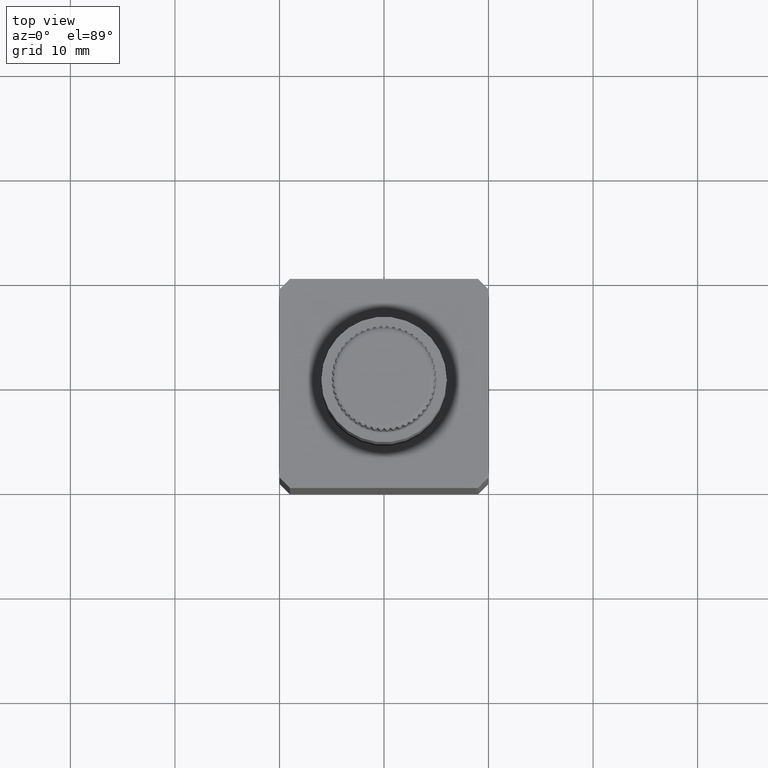
[diagram: clean part render]
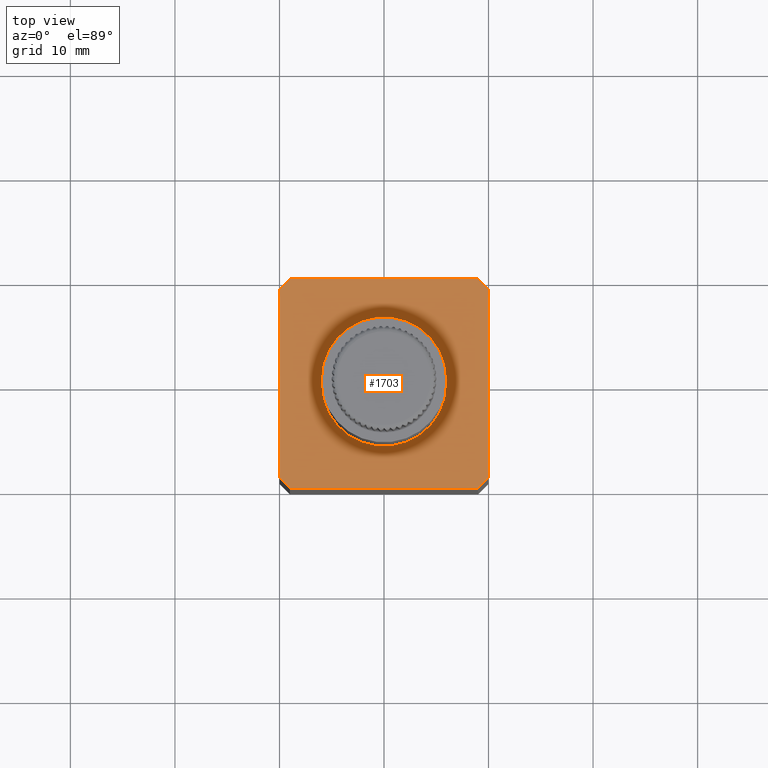
[diagram: same view with one face highlighted and labeled with its STEP entity id]
A machine part, top view. The second image highlights one B-rep face of the part: STEP entity #1703.
In plain terms, the highlighted planar face has unit normal (0, 0, -1).
Its self-contained STEP definition (entity closure, byte-faithful):
#336 = CARTESIAN_POINT ( 'NONE',  ( 9.000000000000010700, -10.00000000000000400, 35.00000000000000000 ) ) ;
#340 = VECTOR ( 'NONE', #1861, 1000.000000000000000 ) ;
#377 = EDGE_CURVE ( 'NONE', #827, #5912, #4413, .T. ) ;
#529 = VERTEX_POINT ( 'NONE', #7027 ) ;
#552 = VECTOR ( 'NONE', #6084, 1000.000000000000000 ) ;
#734 = VERTEX_POINT ( 'NONE', #5701 ) ;
#827 = VERTEX_POINT ( 'NONE', #7378 ) ;
#828 = DIRECTION ( 'NONE',  ( 0.0000000000000000000, 0.0000000000000000000, -1.000000000000000000 ) ) ;
#1052 = CARTESIAN_POINT ( 'NONE',  ( 6.000000000000000900, 7.347880794884120700E-016, 35.00000000000000000 ) ) ;
#1082 = ORIENTED_EDGE ( 'NONE', *, *, #3125, .T. ) ;
#1090 = CIRCLE ( 'NONE', #2014, 6.000000000000000900 ) ;
#1332 = VERTEX_POINT ( 'NONE', #336 ) ;
#1546 = FACE_OUTER_BOUND ( 'NONE', #9881, .T. ) ;
#1683 = CARTESIAN_POINT ( 'NONE',  ( 10.00000000000001200, 10.00000000000000400, 35.00000000000000000 ) ) ;
#1703 = ADVANCED_FACE ( 'NONE', ( #1546, #4131 ), #9462, .F. ) ;
#1741 = CARTESIAN_POINT ( 'NONE',  ( -10.00000000000000900, 9.000000000000001800, 35.00000000000000000 ) ) ;
#1748 = VERTEX_POINT ( 'NONE', #1052 ) ;
#1861 = DIRECTION ( 'NONE',  ( 0.7071067811865463500, -0.7071067811865487900, 0.0000000000000000000 ) ) ;
#1901 = LINE ( 'NONE', #1741, #7258 ) ;
#1973 = VERTEX_POINT ( 'NONE', #7757 ) ;
#2014 = AXIS2_PLACEMENT_3D ( 'NONE', #4680, #3779, #5513 ) ;
#2029 = VECTOR ( 'NONE', #8826, 1000.000000000000000 ) ;
#2054 = DIRECTION ( 'NONE',  ( 9.637352644315595200E-017, -1.000000000000000000, 0.0000000000000000000 ) ) ;
#2133 = LINE ( 'NONE', #2471, #8301 ) ;
#2310 = DIRECTION ( 'NONE',  ( -1.927470528863119800E-016, 1.000000000000000000, -0.0000000000000000000 ) ) ;
#2427 = LINE ( 'NONE', #4259, #340 ) ;
#2471 = CARTESIAN_POINT ( 'NONE',  ( -10.00000000000000900, 9.000000000000001800, 35.00000000000000000 ) ) ;
#2769 = LINE ( 'NONE', #4548, #552 ) ;
#2790 = CARTESIAN_POINT ( 'NONE',  ( -9.000000000000005300, -10.00000000000000400, 35.00000000000000000 ) ) ;
#2887 = VERTEX_POINT ( 'NONE', #7302 ) ;
#2983 = ORIENTED_EDGE ( 'NONE', *, *, #7118, .F. ) ;
#3125 = EDGE_CURVE ( 'NONE', #5912, #9207, #10475, .T. ) ;
#3177 = LINE ( 'NONE', #8197, #9132 ) ;
#3221 = DIRECTION ( 'NONE',  ( -0.7071067811865489100, -0.7071067811865462400, -0.0000000000000000000 ) ) ;
#3265 = ORIENTED_EDGE ( 'NONE', *, *, #3352, .T. ) ;
#3352 = EDGE_CURVE ( 'NONE', #1973, #529, #2427, .T. ) ;
#3621 = VECTOR ( 'NONE', #2310, 1000.000000000000000 ) ;
#3655 = AXIS2_PLACEMENT_3D ( 'NONE', #8152, #9850, #10714 ) ;
#3779 = DIRECTION ( 'NONE',  ( -0.0000000000000000000, -0.0000000000000000000, 1.000000000000000000 ) ) ;
#3988 = CIRCLE ( 'NONE', #3655, 6.000000000000000900 ) ;
#4089 = VERTEX_POINT ( 'NONE', #10858 ) ;
#4118 = EDGE_CURVE ( 'NONE', #2887, #1748, #3988, .T. ) ;
#4131 = FACE_BOUND ( 'NONE', #9471, .T. ) ;
#4259 = CARTESIAN_POINT ( 'NONE',  ( -10.00000000000000700, -8.999999999999998200, 35.00000000000000000 ) ) ;
#4413 = LINE ( 'NONE', #5634, #3621 ) ;
#4548 = CARTESIAN_POINT ( 'NONE',  ( -9.000000000000007100, 9.999999999999998200, 35.00000000000000000 ) ) ;
#4680 = CARTESIAN_POINT ( 'NONE',  ( 0.0000000000000000000, 0.0000000000000000000, 35.00000000000000000 ) ) ;
#4753 = LINE ( 'NONE', #2790, #2029 ) ;
#4868 = ORIENTED_EDGE ( 'NONE', *, *, #5215, .T. ) ;
#4872 = ORIENTED_EDGE ( 'NONE', *, *, #377, .T. ) ;
#5035 = EDGE_CURVE ( 'NONE', #529, #1332, #4753, .T. ) ;
#5215 = EDGE_CURVE ( 'NONE', #1332, #827, #3177, .T. ) ;
#5385 = EDGE_CURVE ( 'NONE', #4089, #1973, #1901, .T. ) ;
#5513 = DIRECTION ( 'NONE',  ( -1.000000000000000000, 0.0000000000000000000, 0.0000000000000000000 ) ) ;
#5634 = CARTESIAN_POINT ( 'NONE',  ( 10.00000000000001200, 8.999999999999994700, 35.00000000000000000 ) ) ;
#5701 = CARTESIAN_POINT ( 'NONE',  ( -9.000000000000007100, 9.999999999999998200, 35.00000000000000000 ) ) ;
#5912 = VERTEX_POINT ( 'NONE', #8949 ) ;
#6084 = DIRECTION ( 'NONE',  ( -1.000000000000000000, -2.891205793294676400E-016, -0.0000000000000000000 ) ) ;
#6447 = ORIENTED_EDGE ( 'NONE', *, *, #5035, .T. ) ;
#7027 = CARTESIAN_POINT ( 'NONE',  ( -9.000000000000005300, -10.00000000000000400, 35.00000000000000000 ) ) ;
#7032 = AXIS2_PLACEMENT_3D ( 'NONE', #1683, #828, #9499 ) ;
#7118 = EDGE_CURVE ( 'NONE', #1748, #2887, #1090, .T. ) ;
#7183 = EDGE_CURVE ( 'NONE', #734, #4089, #2133, .T. ) ;
#7258 = VECTOR ( 'NONE', #2054, 1000.000000000000000 ) ;
#7302 = CARTESIAN_POINT ( 'NONE',  ( -6.000000000000000900, 0.0000000000000000000, 35.00000000000000000 ) ) ;
#7378 = CARTESIAN_POINT ( 'NONE',  ( 10.00000000000001600, -8.999999999999998200, 35.00000000000000000 ) ) ;
#7439 = ORIENTED_EDGE ( 'NONE', *, *, #4118, .F. ) ;
#7757 = CARTESIAN_POINT ( 'NONE',  ( -10.00000000000000700, -8.999999999999998200, 35.00000000000000000 ) ) ;
#8049 = ORIENTED_EDGE ( 'NONE', *, *, #8165, .T. ) ;
#8121 = DIRECTION ( 'NONE',  ( 0.7071067811865469100, 0.7071067811865482400, 0.0000000000000000000 ) ) ;
#8152 = CARTESIAN_POINT ( 'NONE',  ( 0.0000000000000000000, 0.0000000000000000000, 35.00000000000000000 ) ) ;
#8165 = EDGE_CURVE ( 'NONE', #9207, #734, #2769, .T. ) ;
#8197 = CARTESIAN_POINT ( 'NONE',  ( 9.000000000000010700, -10.00000000000000400, 35.00000000000000000 ) ) ;
#8247 = ORIENTED_EDGE ( 'NONE', *, *, #5385, .T. ) ;
#8301 = VECTOR ( 'NONE', #3221, 999.9999999999998900 ) ;
#8749 = DIRECTION ( 'NONE',  ( -0.7071067811865469100, 0.7071067811865482400, -0.0000000000000000000 ) ) ;
#8826 = DIRECTION ( 'NONE',  ( 1.000000000000000000, 0.0000000000000000000, 0.0000000000000000000 ) ) ;
#8949 = CARTESIAN_POINT ( 'NONE',  ( 10.00000000000001200, 8.999999999999994700, 35.00000000000000000 ) ) ;
#9132 = VECTOR ( 'NONE', #8121, 999.9999999999998900 ) ;
#9207 = VERTEX_POINT ( 'NONE', #9240 ) ;
#9240 = CARTESIAN_POINT ( 'NONE',  ( 9.000000000000005300, 10.00000000000000400, 35.00000000000000000 ) ) ;
#9462 = PLANE ( 'NONE',  #7032 ) ;
#9471 = EDGE_LOOP ( 'NONE', ( #7439, #2983 ) ) ;
#9499 = DIRECTION ( 'NONE',  ( -1.000000000000000000, 0.0000000000000000000, -0.0000000000000000000 ) ) ;
#9850 = DIRECTION ( 'NONE',  ( -0.0000000000000000000, -0.0000000000000000000, 1.000000000000000000 ) ) ;
#9881 = EDGE_LOOP ( 'NONE', ( #8049, #10137, #8247, #3265, #6447, #4868, #4872, #1082 ) ) ;
#10137 = ORIENTED_EDGE ( 'NONE', *, *, #7183, .T. ) ;
#10194 = VECTOR ( 'NONE', #8749, 999.9999999999998900 ) ;
#10382 = CARTESIAN_POINT ( 'NONE',  ( 9.000000000000005300, 10.00000000000000400, 35.00000000000000000 ) ) ;
#10475 = LINE ( 'NONE', #10382, #10194 ) ;
#10714 = DIRECTION ( 'NONE',  ( -1.000000000000000000, 0.0000000000000000000, 0.0000000000000000000 ) ) ;
#10858 = CARTESIAN_POINT ( 'NONE',  ( -10.00000000000000900, 9.000000000000001800, 35.00000000000000000 ) ) ;